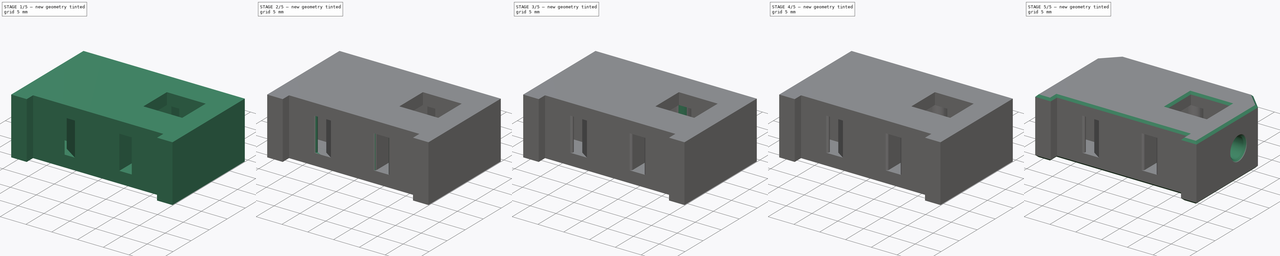
[diagram: build sequence overview — one tinted view per stage of 5, left to right]
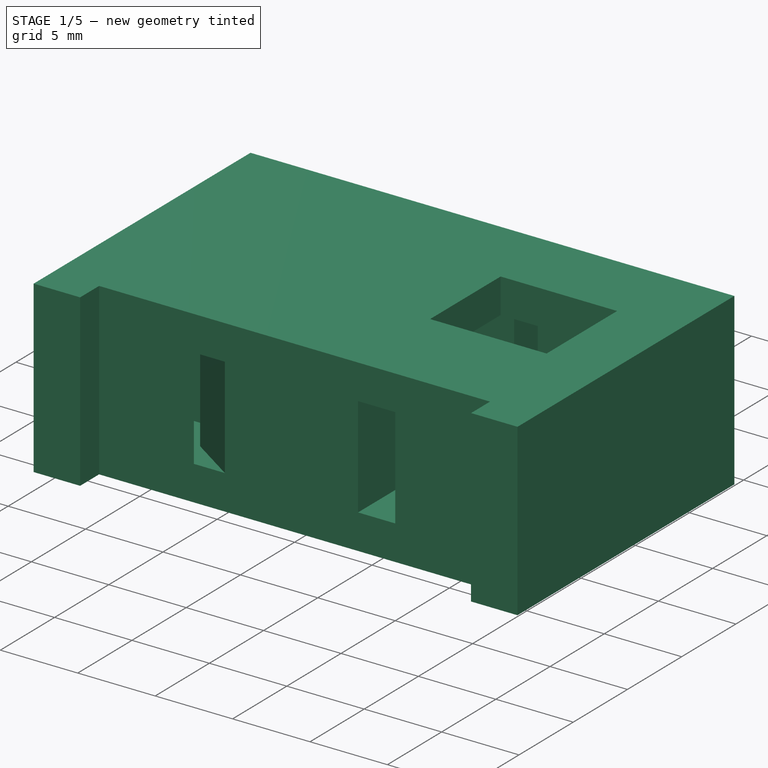
[diagram: stage 1 of 5 — iso view after this stage's code; geometry added in this stage tinted green]
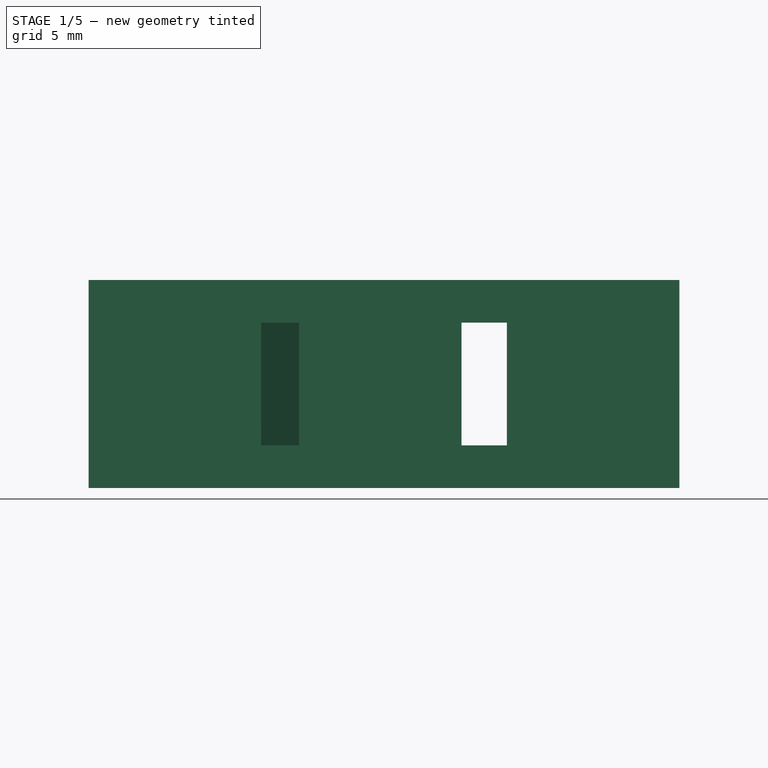
[diagram: stage 1 of 5 — front view after this stage's code; geometry added in this stage tinted green]
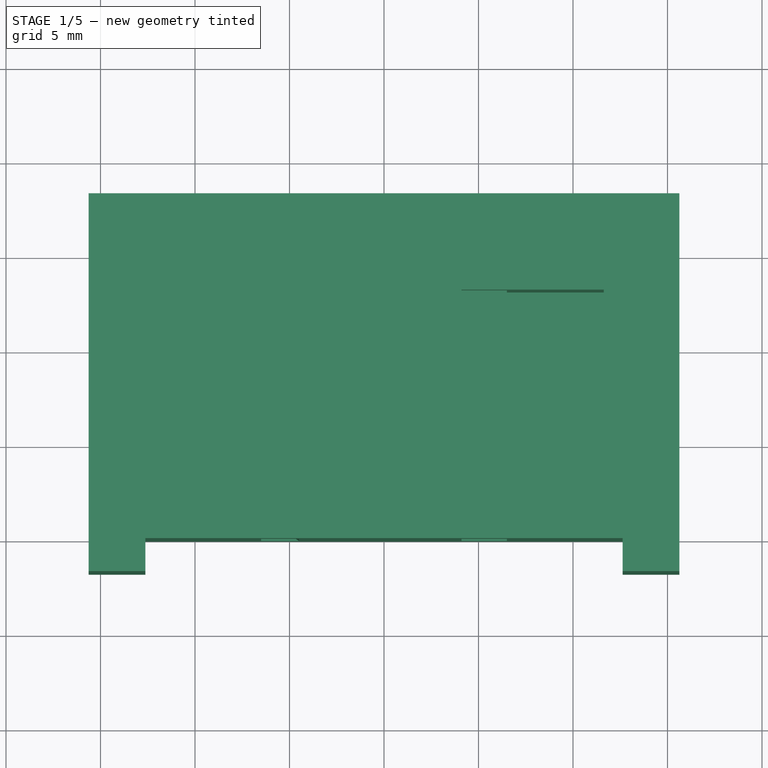
[diagram: stage 1 of 5 — top view after this stage's code; geometry added in this stage tinted green]
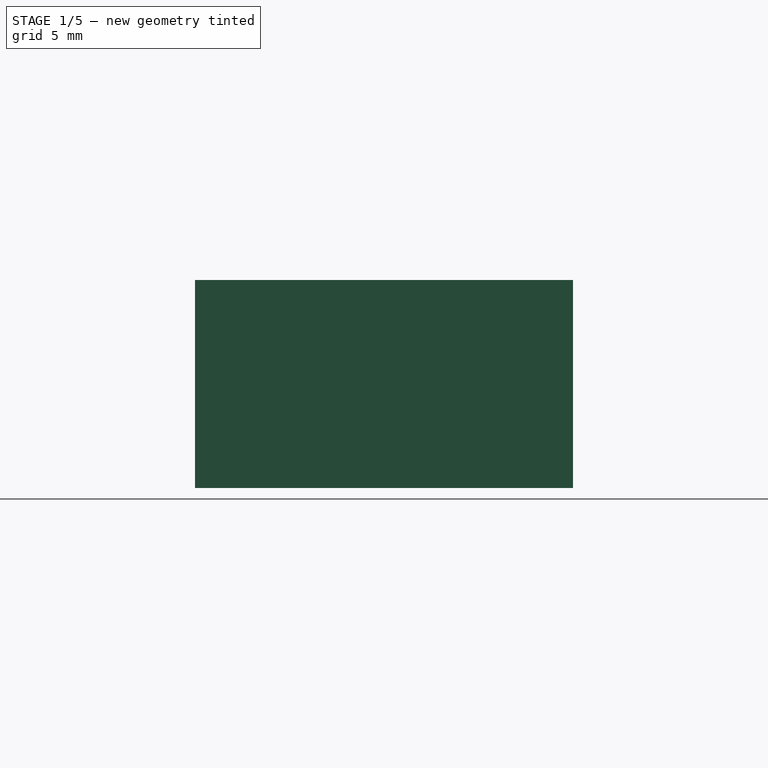
[diagram: stage 1 of 5 — right view after this stage's code; geometry added in this stage tinted green]
FCSTD DOCUMENT  (FreeCAD 0.19R24366 (Git))
Label: belt-clip-tesioner
License: All rights reserved
LicenseURL: http://en.wikipedia.org/wiki/All_rights_reserved
objects: PartDesign::Fillet×10, Sketcher::SketchObject×6, PartDesign::Pocket×5, PartDesign::Chamfer×2, PartDesign::Pad×1, PartDesign::Plane×1, PartDesign::Body×1, Part::Feature×1
note: 45 computed .brp shape members not serialized (recipe doc carries the construction recipe); baked Part::Feature solids carry a one-line shape summary decoded from their .brp

FEATURE [Sketcher::SketchObject] Sketch
  FullyConstrained = true
  MapMode = 5
  Support = -> [XY_Plane]
  sketch-geometry (8):
    g0: LineSegment StartX=-12.625 StartY=-1.75 StartZ=0 EndX=-12.625 EndY=0 EndZ=0
    g1: LineSegment StartX=-12.625 StartY=0 StartZ=0 EndX=12.625 EndY=0 EndZ=0
    g2: LineSegment StartX=12.625 StartY=0 StartZ=0 EndX=12.625 EndY=-1.75 EndZ=0
    g3: LineSegment StartX=12.625 StartY=-1.75 StartZ=0 EndX=15.625 EndY=-1.75 EndZ=0
    g4: LineSegment StartX=15.625 StartY=-1.75 StartZ=0 EndX=15.625 EndY=18.25 EndZ=0
    g5: LineSegment StartX=15.625 StartY=18.25 StartZ=0 EndX=-15.625 EndY=18.25 EndZ=0
    g6: LineSegment StartX=-15.625 StartY=18.25 StartZ=0 EndX=-15.625 EndY=-1.75 EndZ=0
    g7: LineSegment StartX=-15.625 StartY=-1.75 StartZ=0 EndX=-12.625 EndY=-1.75 EndZ=0
  constraints (24):
    c: PointOnObject(g0,g-1)
    c: Vertical(g0)
    c: Coincident(g0,g1)
    c: PointOnObject(g1,g-1)
    c: Coincident(g1,g2)
    c: Vertical(g2)
    c: Coincident(g2,g3)
    c: Horizontal(g3)
    c: Coincident(g3,g4)
    c: Vertical(g4)
    c: Coincident(g4,g5)
    c: Horizontal(g5)
    c: Coincident(g5,g6)
    c: Vertical(g6)
    c: Coincident(g6,g7)
    c: Coincident(g7,g0)
    c: Horizontal(g7)
    c: DistanceX(g1,g1) = 25.25
    c: DistanceX(g0,g-1) = 12.625
    c: DistanceX(g7,g7) = 3
    c: DistanceX(g3,g3) = 3
    c: Horizontal(g0,g2)
    c: DistanceY(g0,g0) = 1.75
    c: DistanceY(g6,g6) = 20
FEATURE [PartDesign::Pad] Pad
  Direction = (1,1,1)
  Length = 11
  Length2 = 100
  Profile = -> Sketch
  Type = 0
FEATURE [PartDesign::Plane] DatumPlane
  AttachmentOffset = pos=(0,0,5.5) rot=(0,0,1;0rad)
  Length = 60
  MapMode = 5
  Placement = pos=(0,0,5.5) rot=(0,0,1;0rad)
  ResizeMode = 0
  Support = -> [XY_Plane]
  Width = 60
FEATURE [Sketcher::SketchObject] Sketch001
  ExternalGeometry = -> [Pad]
  FullyConstrained = true
  MapMode = 5
  Placement = pos=(0,0,5.5) rot=(0,0,1;0rad)
  Support = -> [DatumPlane]
  sketch-geometry (12):
    g0: LineSegment StartX=-15.625 StartY=2 StartZ=0 EndX=-15.625 EndY=4.4 EndZ=0
    g1: LineSegment StartX=-15.625 StartY=4.4 StartZ=0 EndX=-4.5 EndY=4.4 EndZ=0
    g2: LineSegment StartX=-4.5 StartY=4.4 StartZ=0 EndX=-4.5 EndY=2 EndZ=0
    g3: LineSegment StartX=-4.5 StartY=2 StartZ=0 EndX=-7.5 EndY=2 EndZ=0
    g4: LineSegment StartX=-7.5 StartY=2 StartZ=0 EndX=-4.5 EndY=0 EndZ=0
    g5: LineSegment StartX=-4.5 StartY=0 StartZ=0 EndX=-6.5 EndY=0 EndZ=0
    g6: LineSegment StartX=-6.5 StartY=0 StartZ=0 EndX=-9.5 EndY=2 EndZ=0
    g7: LineSegment StartX=-9.5 StartY=2 StartZ=0 EndX=-15.625 EndY=2 EndZ=0
    g8: LineSegment StartX=4.1 StartY=18.25 StartZ=0 EndX=6.5 EndY=18.25 EndZ=0
    g9: LineSegment StartX=6.5 StartY=18.25 StartZ=0 EndX=6.5 EndY=0 EndZ=0
    g10: LineSegment StartX=6.5 StartY=0 StartZ=0 EndX=4.1 EndY=0 EndZ=0
    g11: LineSegment StartX=4.1 StartY=0 StartZ=0 EndX=4.1 EndY=18.25 EndZ=0
  constraints (36):
    c: Vertical(g0)
    c: Coincident(g0,g1)
    c: Horizontal(g1)
    c: Coincident(g1,g2)
    c: Vertical(g2)
    c: Coincident(g2,g3)
    c: Horizontal(g3)
    c: Coincident(g3,g4)
    c: PointOnObject(g4,g-1)
    c: Coincident(g4,g5)
    c: PointOnObject(g5,g-1)
    c: Coincident(g5,g6)
    c: Coincident(g6,g7)
    c: Coincident(g7,g0)
    c: Horizontal(g7)
    c: Horizontal(g6,g3)
    c: DistanceY(g0,g0) = 2.4
    c: DistanceY(g5,g0) = 2
    c: DistanceX(g-3,g5) = 6.125
    c: Vertical(g2,g4)
    c: DistanceX(g3,g3) = 3
    c: DistanceX(g6,g3) = 2
    c: DistanceX(g5,g4) = 2
    c: Vertical(g0,g-4)
    c: Coincident(g8,g9)
    c: Coincident(g9,g10)
    c: Coincident(g10,g11)
    c: Coincident(g11,g8)
    c: Horizontal(g8)
    c: Horizontal(g10)
    c: Vertical(g9)
    c: Vertical(g11)
    c: PointOnObject(g8,g-5)
    c: PointOnObject(g9,g-6)
    c: DistanceX(g9,g-6) = 6.125
    c: DistanceX(g10,g10) = 2.4
FEATURE [PartDesign::Pocket] Pocket
  BaseFeature = -> Pad
  Length = 6.5
  Length2 = 100
  Midplane = true
  Profile = -> Sketch001
  Type = 0
FEATURE [Sketcher::SketchObject] Sketch006
  ExternalGeometry = -> [Pocket]
  FullyConstrained = true
  MapMode = 5
  Placement = pos=(0,0,2.25) rot=(0,0,1;0rad)
  Support = -> [Pocket]
  sketch-geometry (4):
    g0: LineSegment StartX=4.1 StartY=13.15 StartZ=0 EndX=11.625 EndY=13.15 EndZ=0
    g1: LineSegment StartX=11.625 StartY=13.15 StartZ=0 EndX=11.625 EndY=6.65 EndZ=0
    g2: LineSegment StartX=11.625 StartY=6.65 StartZ=0 EndX=4.1 EndY=6.65 EndZ=0
    g3: LineSegment StartX=4.1 StartY=6.65 StartZ=0 EndX=4.1 EndY=13.15 EndZ=0
  constraints (12):
    c: Coincident(g0,g1)
    c: Coincident(g1,g2)
    c: Coincident(g2,g3)
    c: Coincident(g3,g0)
    c: Horizontal(g0)
    c: Horizontal(g2)
    c: Vertical(g1)
    c: Vertical(g3)
    c: DistanceY(g-3,g2) = 2.25
    c: DistanceX(g1,g-4) = 4
    c: DistanceY(g3,g3) = 6.5
    c: Vertical(g0,g-7)
FEATURE [PartDesign::Pocket] Pocket004
  BaseFeature = -> Pocket
  Length = 5
  Length2 = 100
  Profile = -> Sketch006
  Reversed = true
  Type = 2
FEATURE [Sketcher::SketchObject] Sketch007
  ExternalGeometry = -> [Pocket004]
  FullyConstrained = true
  MapMode = 5
  Placement = pos=(0,0,5.5) rot=(0,0,1;0rad)
  Support = -> [DatumPlane]
  sketch-geometry (4):
    g0: LineSegment StartX=-6.5 StartY=5.4 StartZ=0 EndX=4.1 EndY=5.4 EndZ=0
    g1: LineSegment StartX=4.1 StartY=5.4 StartZ=0 EndX=4.1 EndY=14.4 EndZ=0
    g2: LineSegment StartX=4.1 StartY=14.4 StartZ=0 EndX=-6.5 EndY=14.4 EndZ=0
    g3: LineSegment StartX=-6.5 StartY=14.4 StartZ=0 EndX=-6.5 EndY=5.4 EndZ=0
  constraints (12):
    c: Coincident(g0,g1)
    c: Coincident(g1,g2)
    c: Coincident(g2,g3)
    c: Coincident(g3,g0)
    c: Horizontal(g0)
    c: Horizontal(g2)
    c: Vertical(g1)
    c: Vertical(g3)
    c: PointOnObject(g1,g-4)
    c: DistanceY(g3,g3) = 9
    c: DistanceY(g-3,g0) = 1
    c: DistanceX(g0,g-3) = 2
FEATURE [PartDesign::Pocket] Pocket005
  BaseFeature = -> Pocket004
  Length = 6.5
  Length2 = 100
  Midplane = true
  Profile = -> Sketch007
  Type = 0
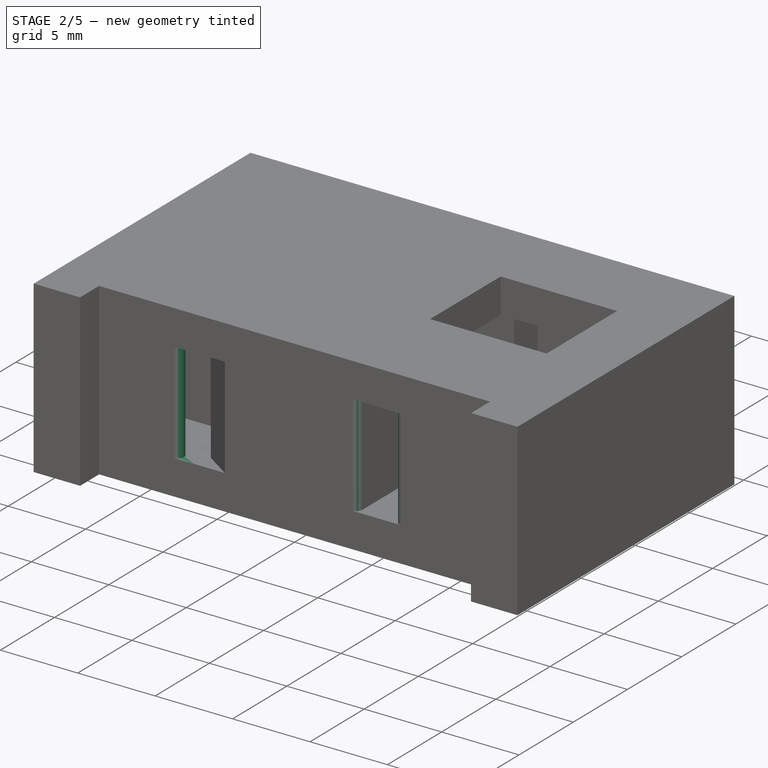
[diagram: stage 2 of 5 — iso view after this stage's code; geometry added in this stage tinted green]
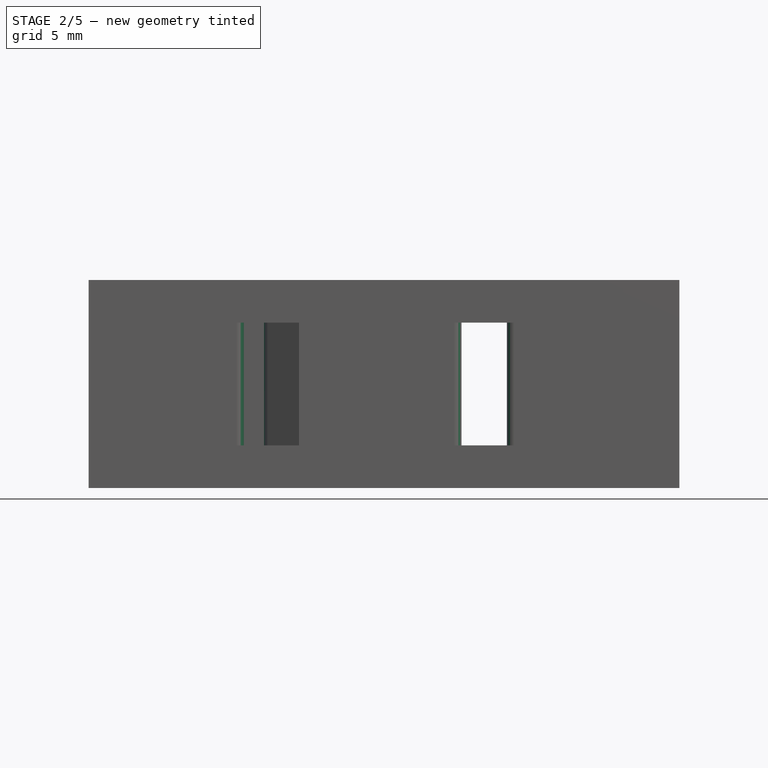
[diagram: stage 2 of 5 — front view after this stage's code; geometry added in this stage tinted green]
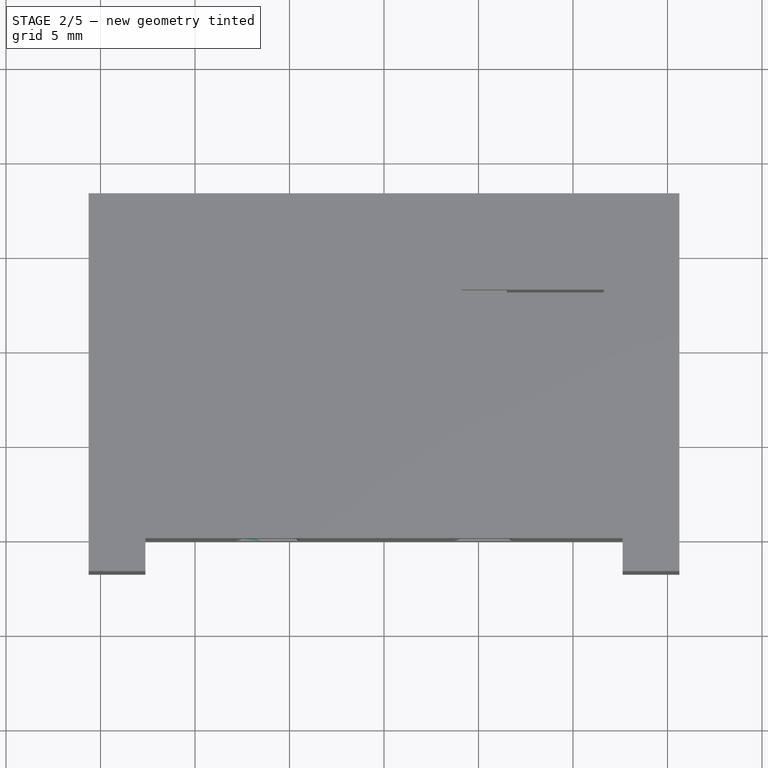
[diagram: stage 2 of 5 — top view after this stage's code; geometry added in this stage tinted green]
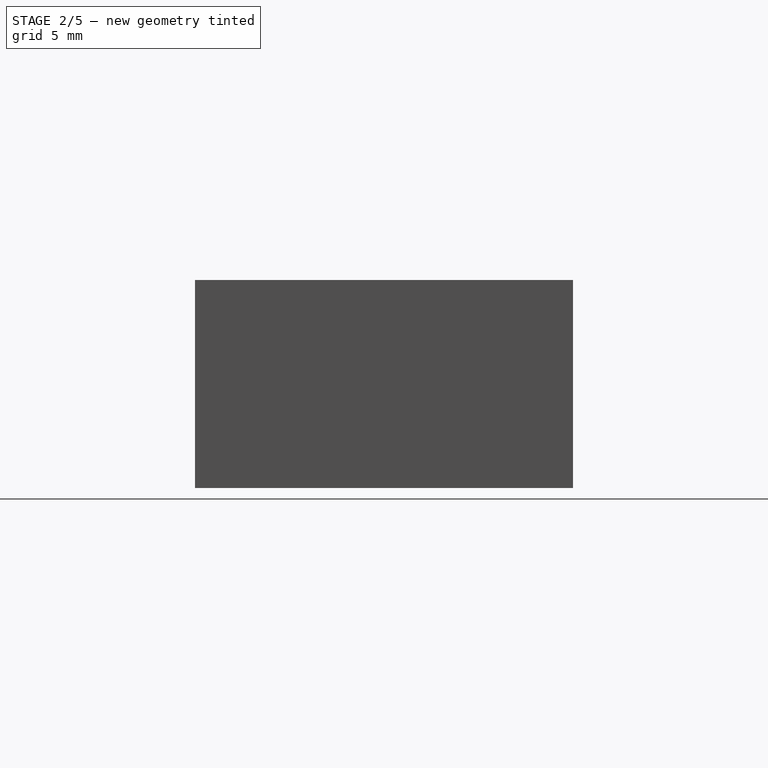
[diagram: stage 2 of 5 — right view after this stage's code; geometry added in this stage tinted green]
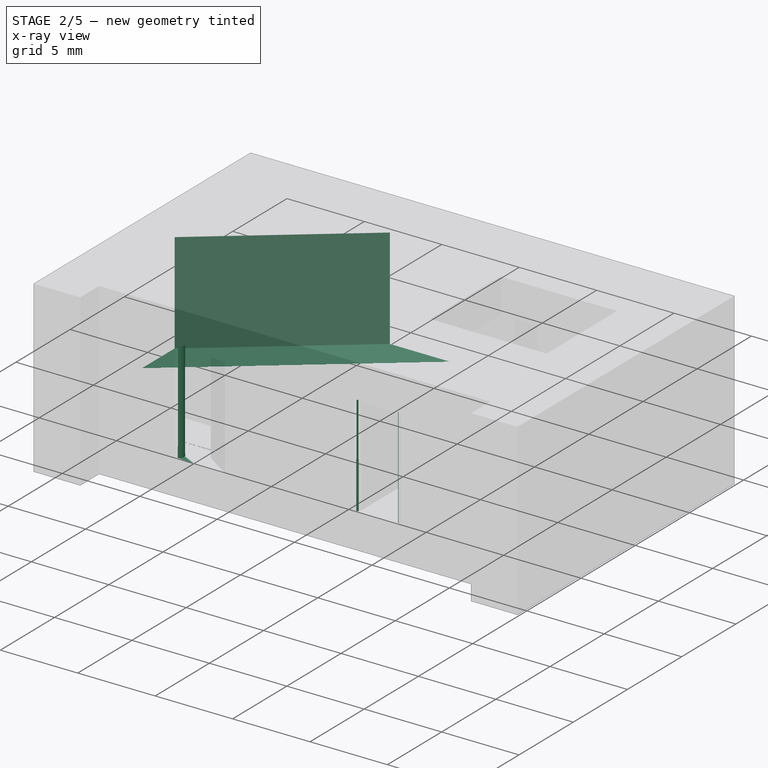
[diagram: stage 2 of 5 — x-ray composite at the iso view; earlier geometry ghosted, this stage's added geometry solid]
FEATURE [PartDesign::Fillet] Fillet
  Base = -> Pocket005 [Edge39,Edge47]
  BaseFeature = -> Pocket005
  Radius = 0.5
  SupportTransform = false
FEATURE [PartDesign::Fillet] Fillet001
  Base = -> Fillet [Edge21,Edge24,Edge22]
  BaseFeature = -> Fillet
  Radius = 0.4
  SupportTransform = false
FEATURE [Sketcher::SketchObject] Sketch008
  FullyConstrained = false
  MapMode = 5
  Placement = pos=(0,0,5.5) rot=(0,0,1;0rad)
  Support = -> [DatumPlane]
  sketch-geometry (5):
    g0: LineSegment StartX=-15.625 StartY=11.25 StartZ=0 EndX=-6.625 EndY=18.25 EndZ=0
    g1: LineSegment StartX=-6.625 StartY=18.25 StartZ=0 EndX=-2.71583 EndY=18.25 EndZ=0
    g2: LineSegment StartX=-2.71583 StartY=18.25 StartZ=0 EndX=-15.625 EndY=8.20953 EndZ=0
    g3: LineSegment StartX=-15.625 StartY=8.20953 StartZ=0 EndX=-15.625 EndY=11.25 EndZ=0
    g4: LineSegment StartX=-6.625 StartY=18.25 StartZ=0 EndX=-5.15154 EndY=16.3556 EndZ=0
  constraints (9):
    c: Coincident(g0,g1)
    c: Coincident(g1,g2)
    c: Coincident(g2,g3)
    c: Coincident(g3,g0)
    c: Coincident(g4,g0)
    c: PointOnObject(g4,g2)
    c: Angle(g4,g2) = 1.5708
    c: Distance(g4) = 2.4
    c: Parallel(g0,g2)
FEATURE [PartDesign::Pocket] Pocket006
  BaseFeature = -> Fillet001
  Length = 6.5
  Length2 = 100
  Midplane = true
  Profile = -> Sketch008
  Type = 0
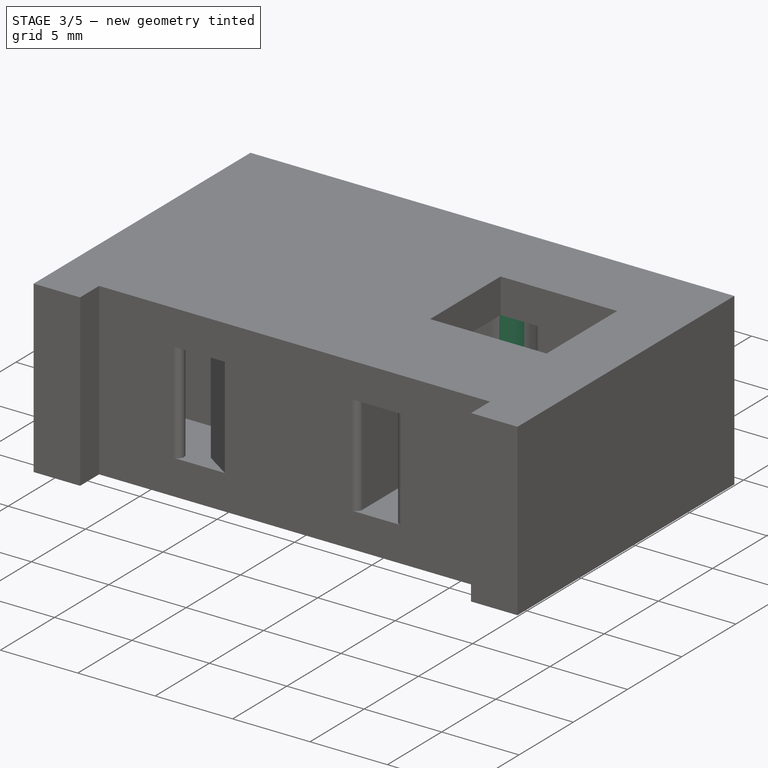
[diagram: stage 3 of 5 — iso view after this stage's code; geometry added in this stage tinted green]
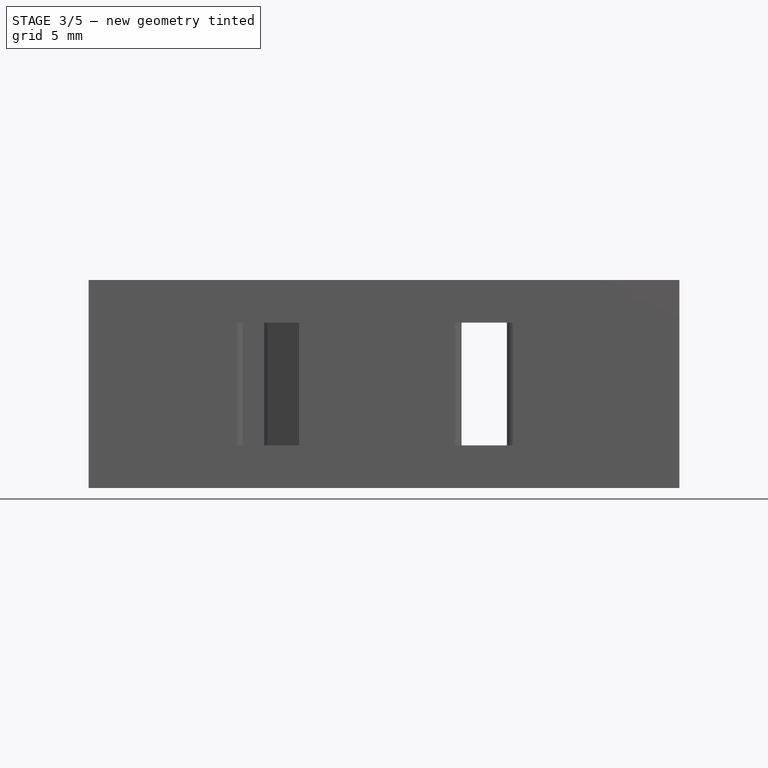
[diagram: stage 3 of 5 — front view after this stage's code; geometry added in this stage tinted green]
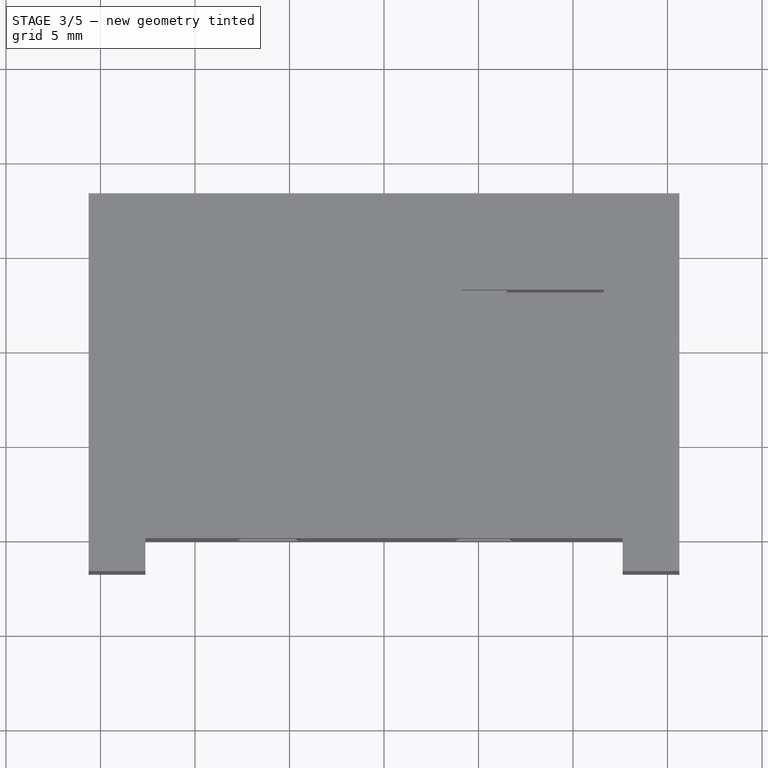
[diagram: stage 3 of 5 — top view after this stage's code; geometry added in this stage tinted green]
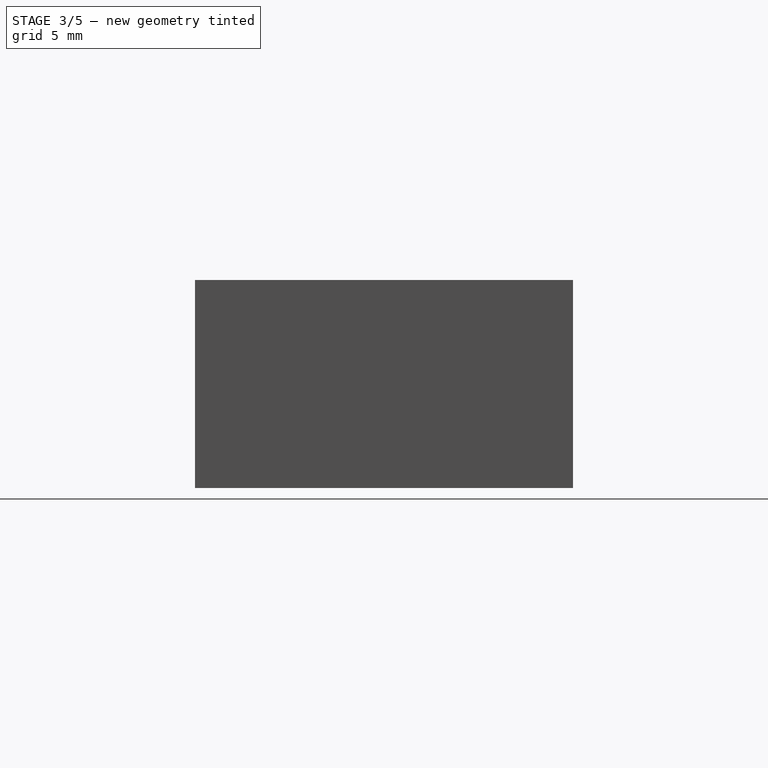
[diagram: stage 3 of 5 — right view after this stage's code; geometry added in this stage tinted green]
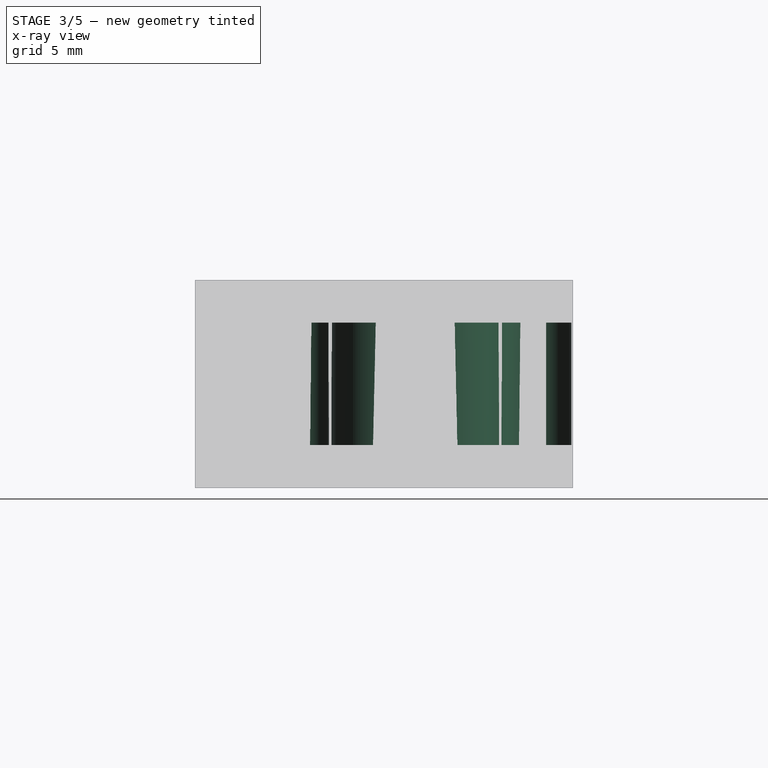
[diagram: stage 3 of 5 — x-ray composite at the right view; earlier geometry ghosted, this stage's added geometry solid]
FEATURE [PartDesign::Fillet] Fillet002
  Base = -> Pocket006 [Edge126,Edge127]
  BaseFeature = -> Pocket006
  Radius = 3
  SupportTransform = false
FEATURE [PartDesign::Fillet] Fillet003
  Base = -> Fillet002 [Edge10,Edge33]
  BaseFeature = -> Fillet002
  Radius = 1.5
  SupportTransform = false
FEATURE [PartDesign::Fillet] Fillet004
  Base = -> Fillet003 [Edge83]
  BaseFeature = -> Fillet003
  Radius = 2
  SupportTransform = false
FEATURE [PartDesign::Fillet] Fillet005
  Base = -> Fillet004 [Edge101,Edge98]
  BaseFeature = -> Fillet004
  Radius = 1.5
  SupportTransform = false
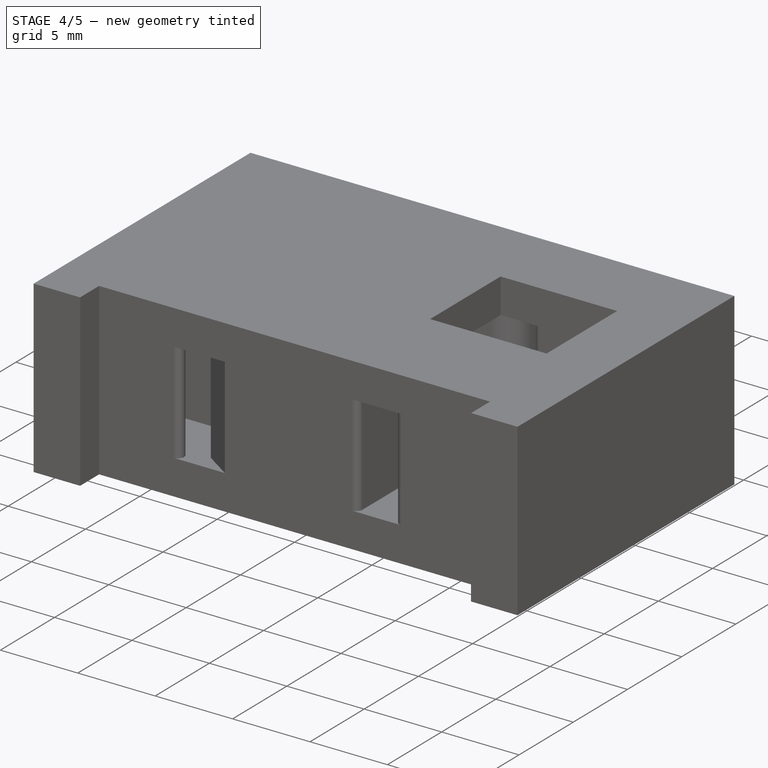
[diagram: stage 4 of 5 — iso view after this stage's code; geometry added in this stage tinted green]
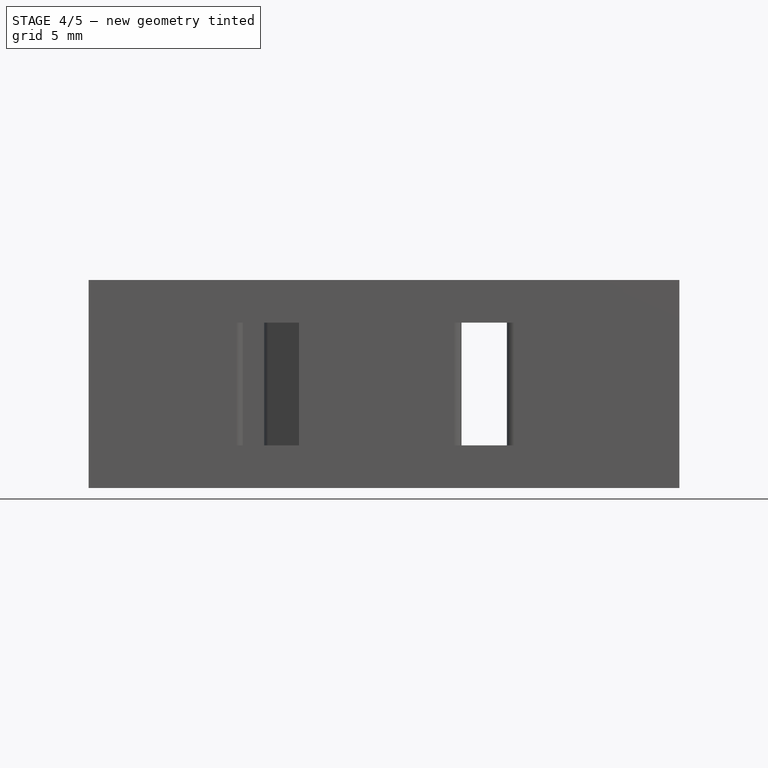
[diagram: stage 4 of 5 — front view after this stage's code; geometry added in this stage tinted green]
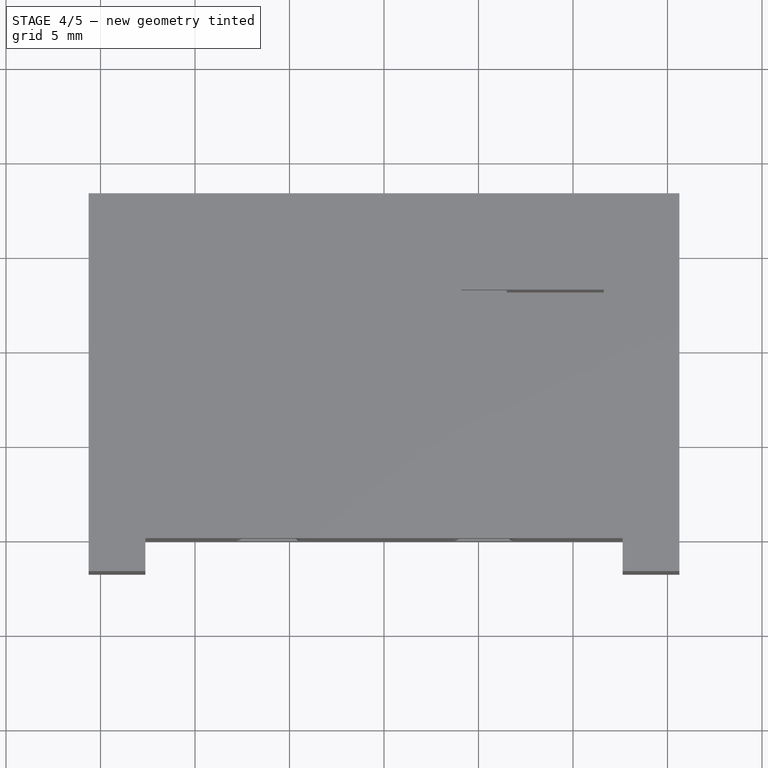
[diagram: stage 4 of 5 — top view after this stage's code; geometry added in this stage tinted green]
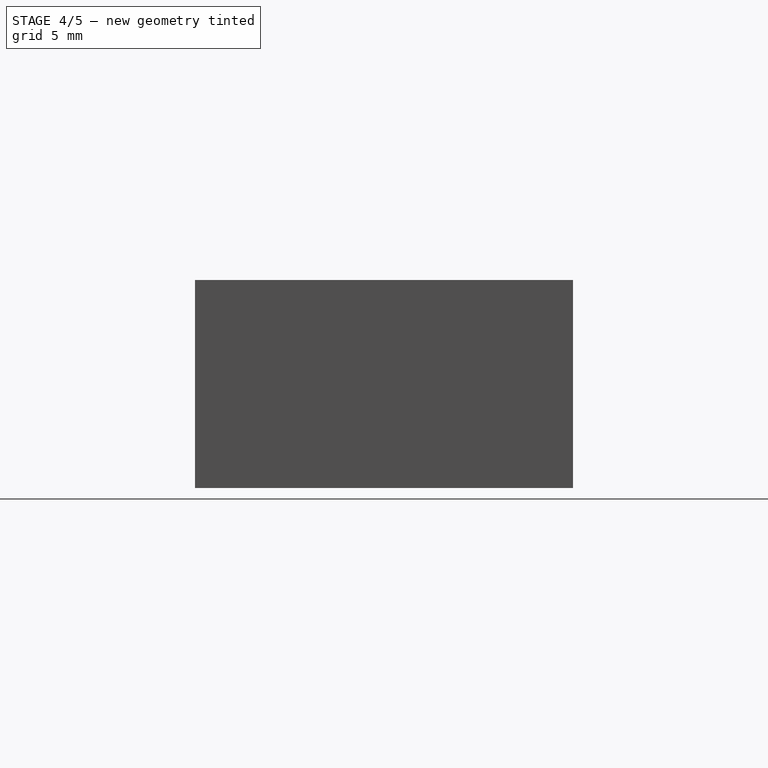
[diagram: stage 4 of 5 — right view after this stage's code; geometry added in this stage tinted green]
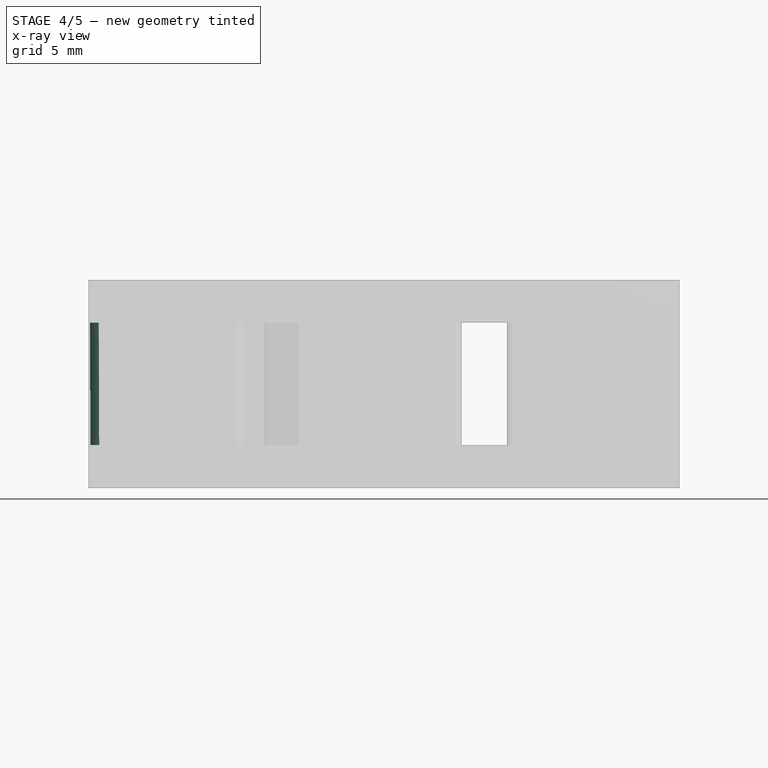
[diagram: stage 4 of 5 — x-ray composite at the front view; earlier geometry ghosted, this stage's added geometry solid]
FEATURE [PartDesign::Fillet] Fillet006
  Base = -> Fillet005 [Edge14]
  BaseFeature = -> Fillet005
  Radius = 1
  SupportTransform = false
FEATURE [PartDesign::Fillet] Fillet007
  Base = -> Fillet006 [Edge4]
  BaseFeature = -> Fillet006
  Radius = 0.5
  SupportTransform = false
FEATURE [PartDesign::Fillet] Fillet008
  Base = -> Fillet007 [Edge71]
  BaseFeature = -> Fillet007
  Radius = 3
  SupportTransform = false
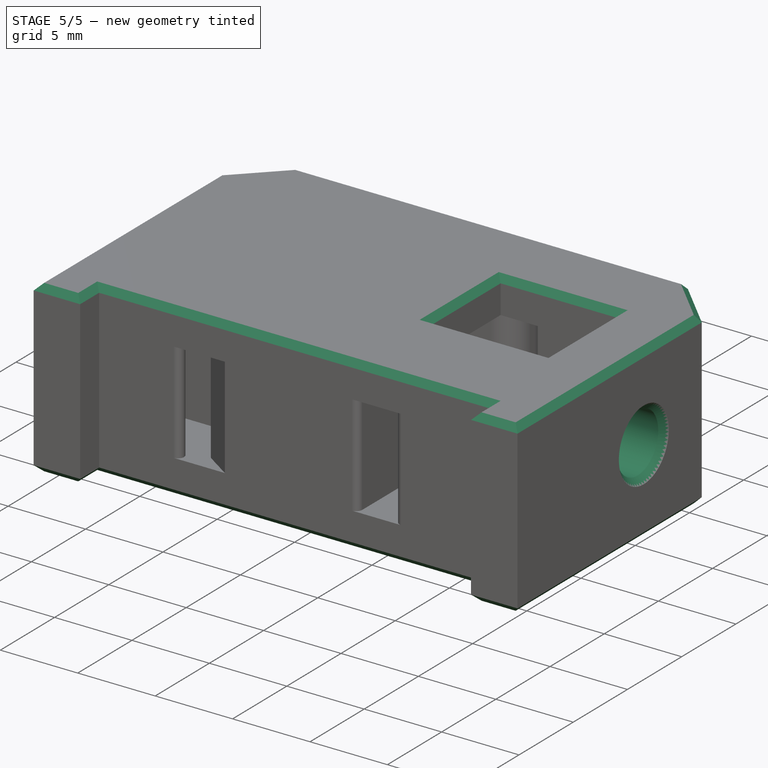
[diagram: stage 5 of 5 — iso view after this stage's code; geometry added in this stage tinted green]
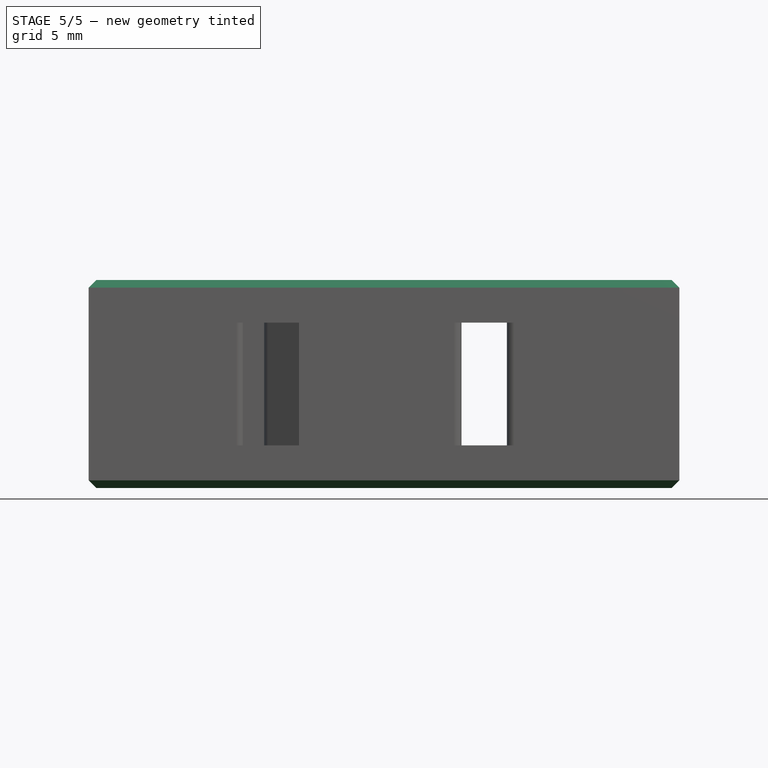
[diagram: stage 5 of 5 — front view after this stage's code; geometry added in this stage tinted green]
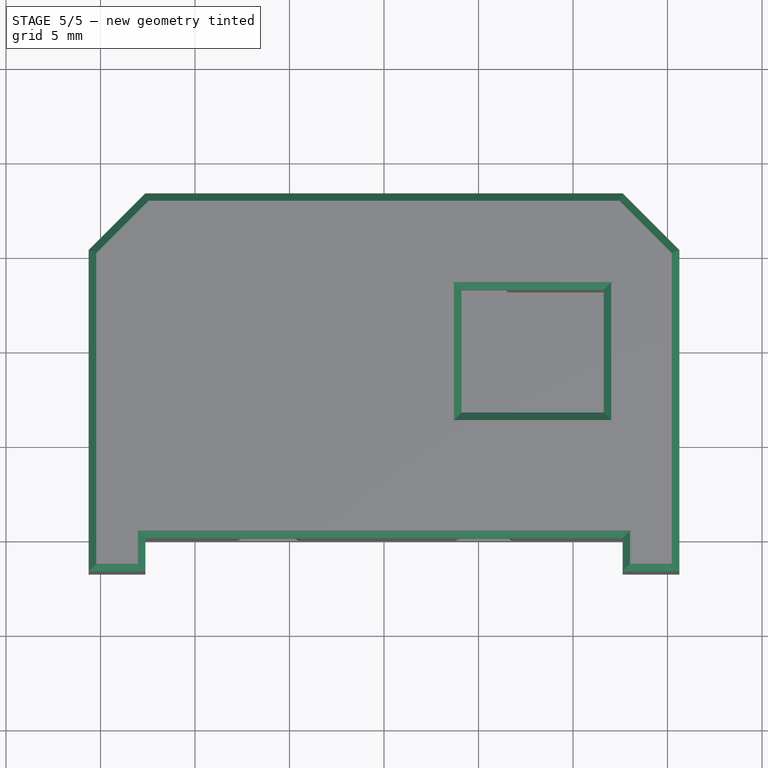
[diagram: stage 5 of 5 — top view after this stage's code; geometry added in this stage tinted green]
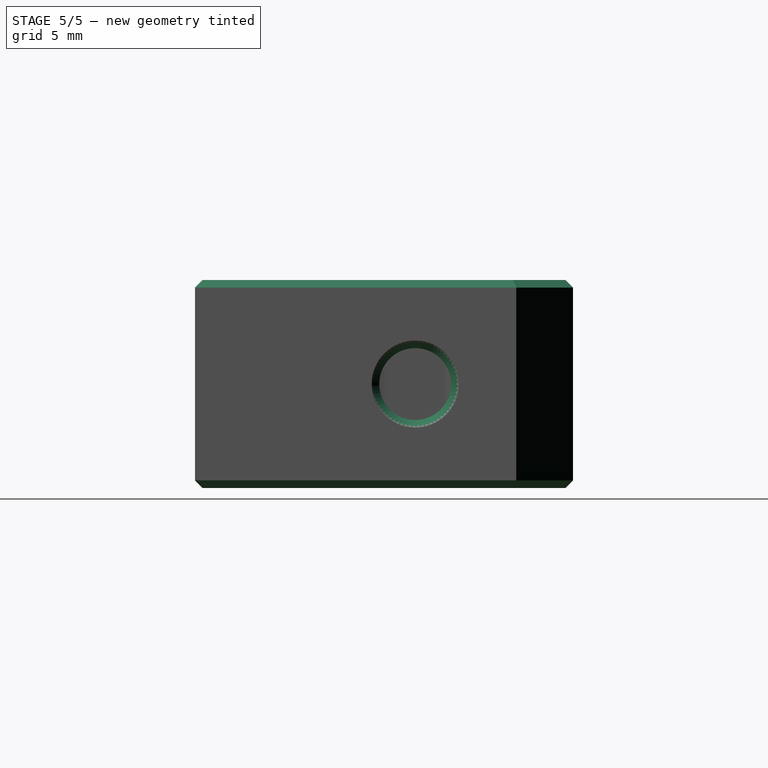
[diagram: stage 5 of 5 — right view after this stage's code; geometry added in this stage tinted green]
FEATURE [PartDesign::Fillet] Fillet009
  Base = -> Fillet008 [Edge18,Edge24]
  BaseFeature = -> Fillet008
  Radius = 1
  SupportTransform = false
FEATURE [PartDesign::Chamfer] Chamfer001
  Angle = 45
  Base = -> Fillet009 [Edge24,Edge27]
  BaseFeature = -> Fillet009
  ChamferType = 0
  FlipDirection = false
  Size = 3
  Size2 = 1
  SupportTransform = false
FEATURE [Sketcher::SketchObject] Sketch009
  ExternalGeometry = -> [Chamfer001]
  FullyConstrained = true
  MapMode = 5
  Placement = pos=(15.625,0,0) rot=(0.57735,0.57735,0.57735;2.0944rad)
  Support = -> [Chamfer001]
  sketch-geometry (3):
    g0: LineSegment StartX=6.65 StartY=2.25 StartZ=0 EndX=9.9 EndY=5.5 EndZ=0
    g1: LineSegment StartX=13.15 StartY=2.25 StartZ=0 EndX=9.9 EndY=5.5 EndZ=0
    g2: Circle CenterX=9.9 CenterY=5.5 CenterZ=0 NormalX=0 NormalY=0 NormalZ=1 AngleXU=0 Radius=1.9
  constraints (7):
    c: Coincident(g0,g-3)
    c: Coincident(g1,g-4)
    c: Coincident(g1,g0)
    c: Coincident(g2,g0)
    c: DistanceY(g-1,g2) = 5.5
    c: Equal(g0,g1)
    c: Radius(g2) = 1.9
FEATURE [PartDesign::Pocket] Pocket007
  BaseFeature = -> Chamfer001
  Length = 5
  Length2 = 100
  Profile = -> Sketch009
  Type = 2
FEATURE [PartDesign::Chamfer] Chamfer002
  Angle = 45
  Base = -> Pocket007 [Face5,Face2,Edge90]
  BaseFeature = -> Pocket007
  ChamferType = 0
  FlipDirection = false
  Size = 0.4
  Size2 = 1
  SupportTransform = false
FEATURE [PartDesign::Body] Body
  Group = -> [Sketch,Pad,DatumPlane,Sketch001,Pocket,Sketch006,Pocket004,Sketch007,Pocket005,Fillet,Fillet001,Sketch008,Pocket006,Fillet002,Fillet003,Fillet004,Fillet005,Fillet006,Fillet007,Fillet008,Fillet009,Chamfer001,Sketch009,Pocket007,Chamfer002]
  Origin = -> Origin
  Tip = -> Chamfer002
FEATURE [Part::Feature] Part__Mirroring001  label="Body001 (Mirror #1)001"
  shape: bbox 31.25 x 20 x 11 mm, 84 faces (baked)
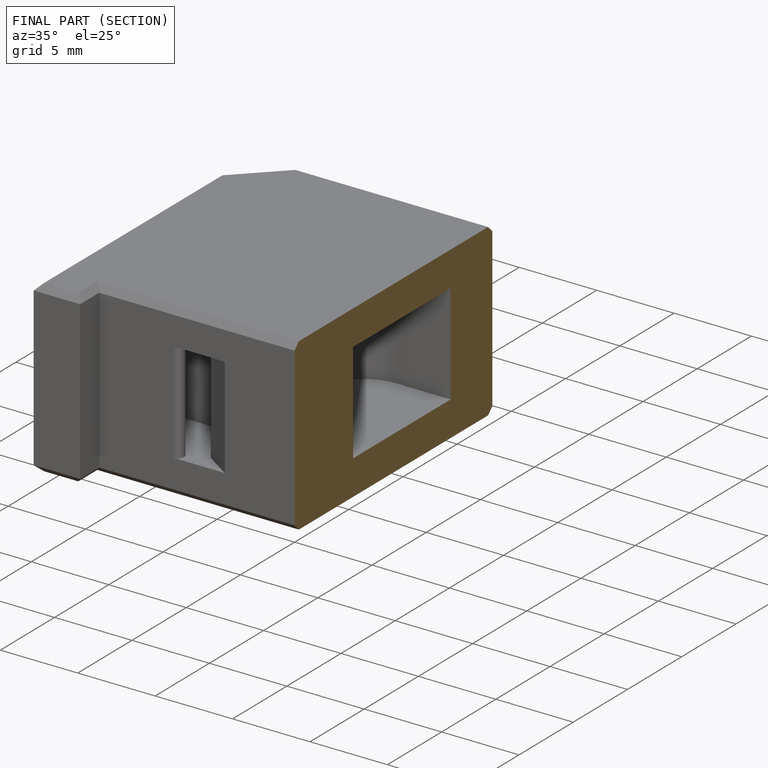
[diagram: finished part — half-section view (interior)]
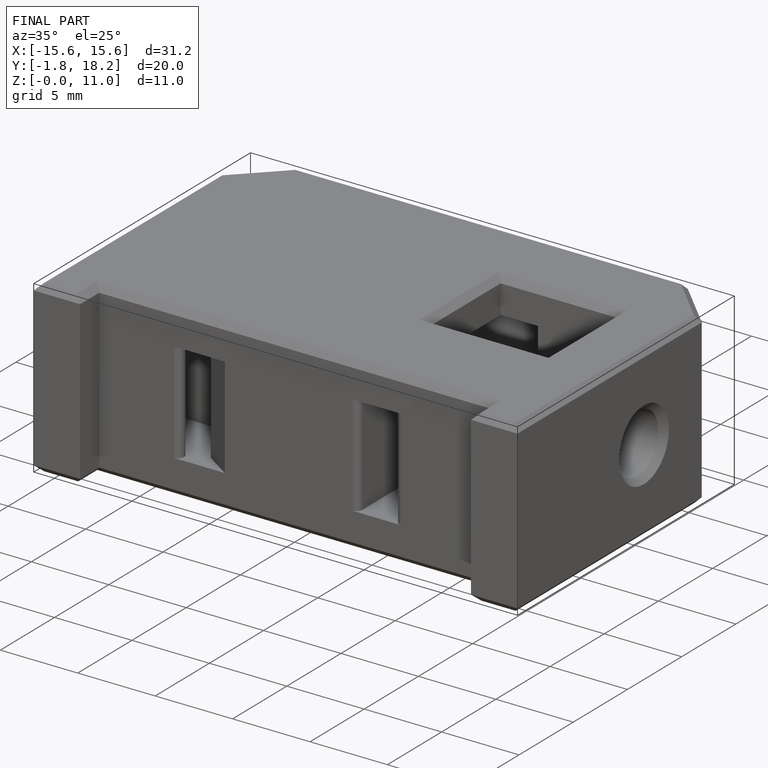
[diagram: finished part — iso view with bounding-box wireframe]
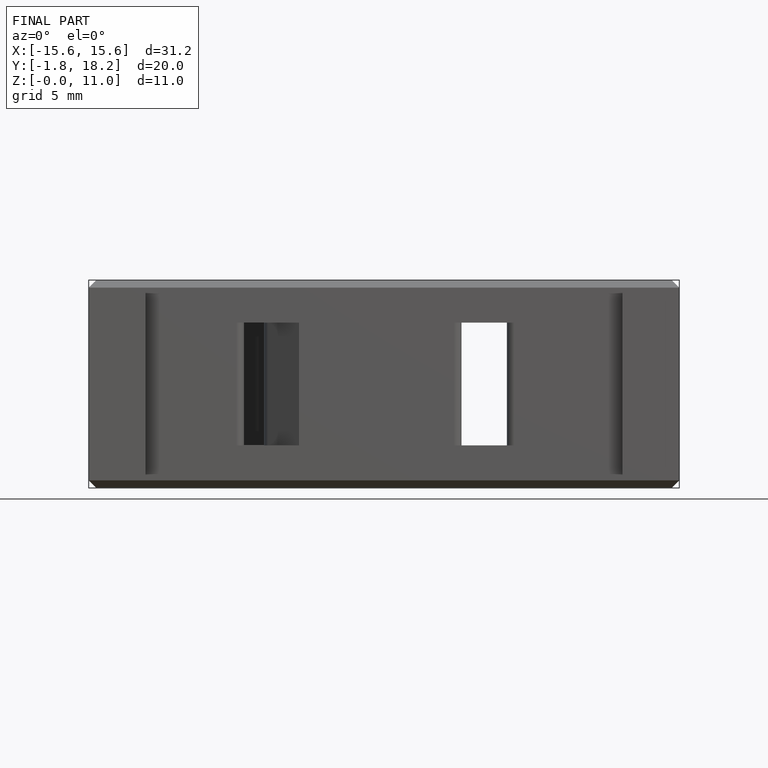
[diagram: finished part — front view with bounding-box wireframe]
